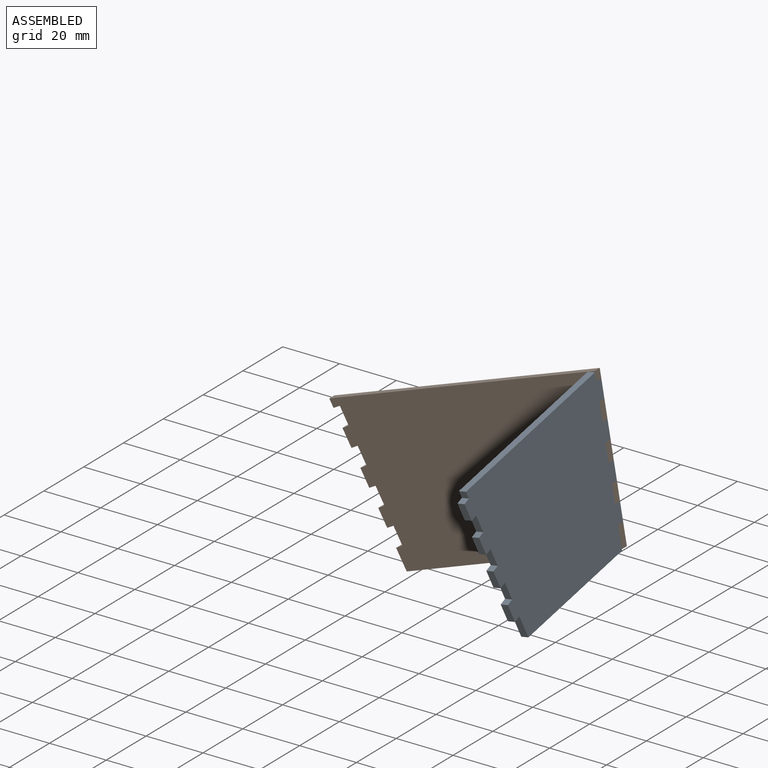
[diagram: assembled view]
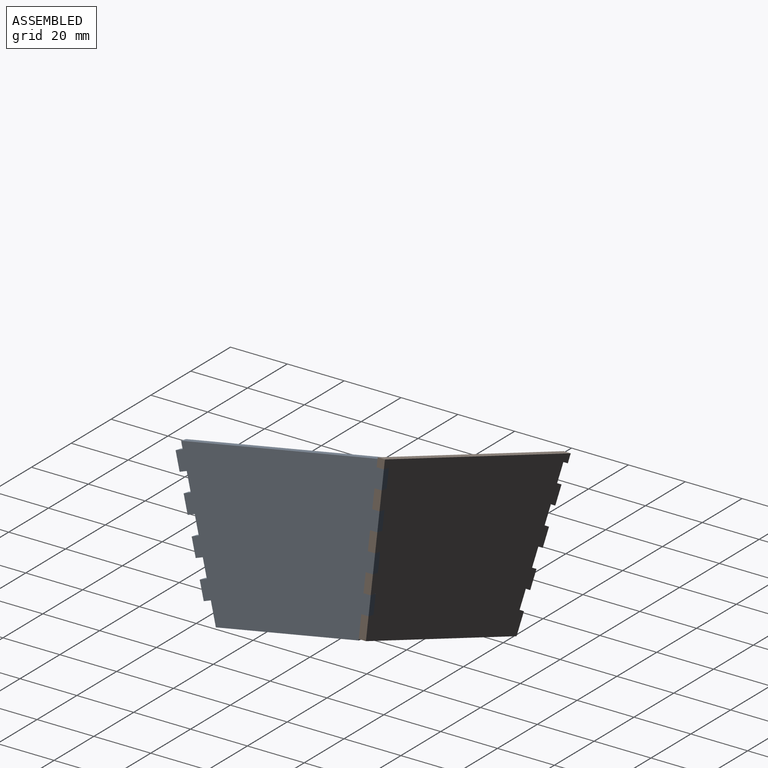
[diagram: assembled view, second angle]
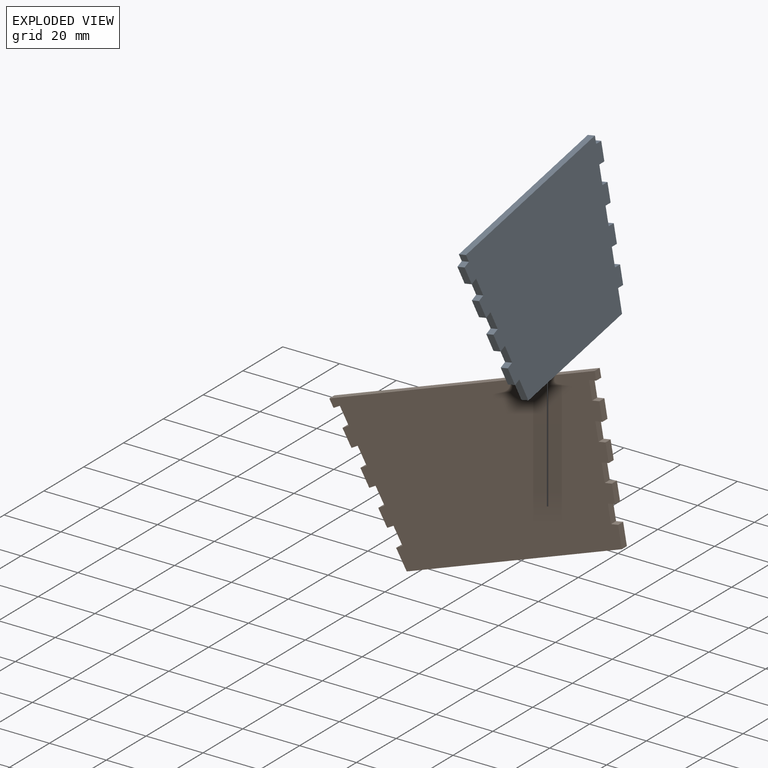
[diagram: exploded view]
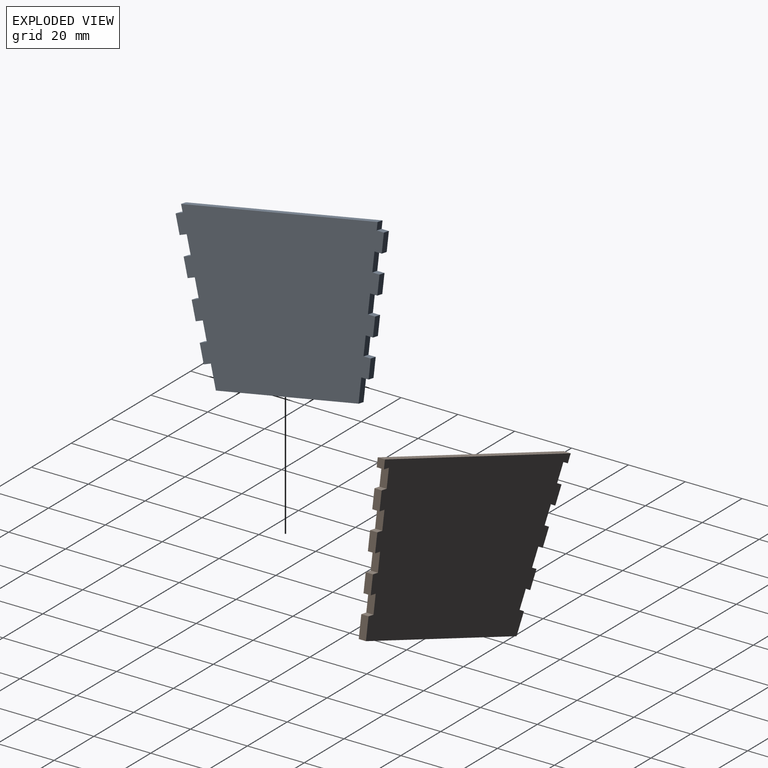
[diagram: exploded view, second angle]
ASSEMBLY  parts=2 mates=2
PART A: 38 faces, bbox 11.9x72.8x53.8 mm
  f0: plane 2.58x2.5mm, normal (-0.17,0.17,0.97), area 6.5mm2, adj f1,f35,f36,f37
  f1: plane 6.6x3.59mm, normal (0.03,0.99,-0.17), area 16.1mm2, adj f0,f2,f36,f37
  f2: plane 2.58x2.5mm, normal (0.17,-0.17,-0.97), area 6.5mm2, adj f1,f3,f36,f37
  f3: plane 6.6x3.59mm, normal (0.03,0.99,-0.17), area 16.1mm2, adj f2,f4,f36,f37
  f4: plane 2.58x2.5mm, normal (-0.17,0.17,0.97), area 6.5mm2, adj f3,f5,f36,f37
  f5: plane 6.6x3.59mm, normal (0.03,0.99,-0.17), area 16.1mm2, adj f4,f6,f36,f37
  f6: plane 2.58x2.5mm, normal (0.17,-0.17,-0.97), area 6.5mm2, adj f5,f7,f36,f37
  f7: plane 6.6x3.59mm, normal (0.03,0.99,-0.17), area 16.1mm2, adj f6,f8,f36,f37
  f8: plane 2.58x2.5mm, normal (-0.17,0.17,0.97), area 6.5mm2, adj f7,f9,f36,f37
  f9: plane 6.6x3.59mm, normal (0.03,0.99,-0.17), area 16.1mm2, adj f8,f10,f36,f37
  f10: plane 2.58x2.5mm, normal (0.17,-0.17,-0.97), area 6.5mm2, adj f9,f11,f36,f37
  f11: plane 6.6x3.59mm, normal (0.03,0.99,-0.17), area 16.1mm2, adj f10,f12,f36,f37
  f12: plane 2.58x2.5mm, normal (-0.17,0.17,0.97), area 6.5mm2, adj f11,f13,f36,f37
  f13: plane 6.6x3.59mm, normal (0.03,0.99,-0.17), area 16.1mm2, adj f12,f14,f36,f37
  f14: plane 2.58x2.5mm, normal (0.17,-0.17,-0.97), area 6.5mm2, adj f13,f15,f36,f37
  f15: plane 8.16x3.86mm, normal (0.03,0.99,-0.17), area 20.2mm2, adj f14,f16,f36,f37
  f16: plane 49.9x2.5mm, normal (0.17,0,-0.98), area 126.8mm2, adj f15,f17,f36,f37
  f17: plane 8.16x3.86mm, normal (0.03,-0.99,-0.17), area 20.2mm2, adj f16,f18,f36,f37
  f18: plane 2.58x2.5mm, normal (0.17,0.17,-0.97), area 6.5mm2, adj f17,f19,f36,f37
  f19: plane 6.6x3.59mm, normal (0.03,-0.99,-0.17), area 16.1mm2, adj f18,f20,f36,f37
  f20: plane 2.58x2.5mm, normal (-0.17,-0.17,0.97), area 6.5mm2, adj f19,f21,f36,f37
  f21: plane 6.6x3.59mm, normal (0.03,-0.99,-0.17), area 16.1mm2, adj f20,f22,f36,f37
  f22: plane 2.58x2.5mm, normal (0.17,0.17,-0.97), area 6.5mm2, adj f21,f23,f36,f37
  f23: plane 6.6x3.59mm, normal (0.03,-0.99,-0.17), area 16.1mm2, adj f22,f24,f36,f37
  f24: plane 2.58x2.5mm, normal (-0.17,-0.17,0.97), area 6.5mm2, adj f23,f25,f36,f37
  f25: plane 6.6x3.59mm, normal (0.03,-0.99,-0.17), area 16.1mm2, adj f24,f26,f36,f37
  f26: plane 2.58x2.5mm, normal (0.17,0.17,-0.97), area 6.5mm2, adj f25,f27,f36,f37
  f27: plane 6.6x3.59mm, normal (0.03,-0.99,-0.17), area 16.1mm2, adj f26,f28,f36,f37
  f28: plane 2.58x2.5mm, normal (-0.17,-0.17,0.97), area 6.5mm2, adj f27,f29,f36,f37
  f29: plane 6.6x3.59mm, normal (0.03,-0.99,-0.17), area 16.1mm2, adj f28,f30,f36,f37
  f30: plane 2.58x2.5mm, normal (0.17,0.17,-0.97), area 6.5mm2, adj f29,f31,f36,f37
  f31: plane 6.6x3.59mm, normal (0.03,-0.99,-0.17), area 16.1mm2, adj f30,f32,f36,f37
  f32: plane 2.58x2.5mm, normal (-0.17,-0.17,0.97), area 6.5mm2, adj f31,f33,f36,f37
  f33: plane 2.94x2.93mm, normal (0.03,-0.99,-0.17), area 6.5mm2, adj f32,f34,f36,f37
  f34: plane 68.72x2.5mm, normal (-0.17,0,0.98), area 174.5mm2, adj f33,f35,f36,f37
  f35: plane 2.94x2.93mm, normal (0.03,0.99,-0.17), area 6.5mm2, adj f0,f34,f36,f37
  f36: plane 72.84x53.34mm, normal (0.98,0,0.17), area 3341.5mm2, adj f0,f1,f2,f3,f4,f5,f6,f7
  f37: plane 72.84x53.34mm, normal (-0.98,0,-0.17), area 3341.5mm2, adj f0,f1,f2,f3,f4,f5,f6,f7
PART B: 38 faces, bbox 99.3x11.9x53.8 mm
  f0: plane 2.58x2.5mm, normal (0.17,-0.17,-0.97), area 6.5mm2, adj f1,f35,f36,f37
  f1: plane 3.36x3.02mm, normal (-0.99,-0.03,-0.17), area 7.6mm2, adj f0,f2,f36,f37
  f2: plane 99.27x2.5mm, normal (0,0.17,0.98), area 252.2mm2, adj f1,f3,f36,f37
  f3: plane 3.36x3.02mm, normal (0.99,-0.03,-0.17), area 7.6mm2, adj f2,f4,f36,f37
  f4: plane 2.58x2.5mm, normal (-0.17,-0.17,-0.97), area 6.5mm2, adj f3,f5,f36,f37
  f5: plane 6.6x3.59mm, normal (0.99,-0.03,-0.17), area 16.1mm2, adj f4,f6,f36,f37
  f6: plane 2.58x2.5mm, normal (0.17,0.17,0.97), area 6.5mm2, adj f5,f7,f36,f37
  f7: plane 6.6x3.59mm, normal (0.99,-0.03,-0.17), area 16.1mm2, adj f6,f8,f36,f37
  f8: plane 2.58x2.5mm, normal (-0.17,-0.17,-0.97), area 6.5mm2, adj f7,f9,f36,f37
  f9: plane 6.6x3.59mm, normal (0.99,-0.03,-0.17), area 16.1mm2, adj f8,f10,f36,f37
  f10: plane 2.58x2.5mm, normal (0.17,0.17,0.97), area 6.5mm2, adj f9,f11,f36,f37
  f11: plane 6.6x3.59mm, normal (0.99,-0.03,-0.17), area 16.1mm2, adj f10,f12,f36,f37
  f12: plane 2.58x2.5mm, normal (-0.17,-0.17,-0.97), area 6.5mm2, adj f11,f13,f36,f37
  f13: plane 6.6x3.59mm, normal (0.99,-0.03,-0.17), area 16.1mm2, adj f12,f14,f36,f37
  f14: plane 2.58x2.5mm, normal (0.17,0.17,0.97), area 6.5mm2, adj f13,f15,f36,f37
  f15: plane 6.6x3.59mm, normal (0.99,-0.03,-0.17), area 16.1mm2, adj f14,f16,f36,f37
  f16: plane 2.58x2.5mm, normal (-0.17,-0.17,-0.97), area 6.5mm2, adj f15,f17,f36,f37
  f17: plane 6.6x3.59mm, normal (0.99,-0.03,-0.17), area 16.1mm2, adj f16,f18,f36,f37
  f18: plane 2.58x2.5mm, normal (0.17,0.17,0.97), area 6.5mm2, adj f17,f19,f36,f37
  f19: plane 7.73x3.79mm, normal (0.99,-0.03,-0.17), area 19.1mm2, adj f18,f20,f36,f37
  f20: plane 80.46x2.5mm, normal (0,-0.17,-0.98), area 204.4mm2, adj f19,f21,f36,f37
  f21: plane 7.73x3.79mm, normal (-0.99,-0.03,-0.17), area 19.1mm2, adj f20,f22,f36,f37
  f22: plane 2.58x2.5mm, normal (-0.17,0.17,0.97), area 6.5mm2, adj f21,f23,f36,f37
  f23: plane 6.6x3.59mm, normal (-0.99,-0.03,-0.17), area 16.1mm2, adj f22,f24,f36,f37
  f24: plane 2.58x2.5mm, normal (0.17,-0.17,-0.97), area 6.5mm2, adj f23,f25,f36,f37
  f25: plane 6.6x3.59mm, normal (-0.99,-0.03,-0.17), area 16.1mm2, adj f24,f26,f36,f37
  f26: plane 2.58x2.5mm, normal (-0.17,0.17,0.97), area 6.5mm2, adj f25,f27,f36,f37
  f27: plane 6.6x3.59mm, normal (-0.99,-0.03,-0.17), area 16.1mm2, adj f26,f28,f36,f37
  f28: plane 2.58x2.5mm, normal (0.17,-0.17,-0.97), area 6.5mm2, adj f27,f29,f36,f37
  f29: plane 6.6x3.59mm, normal (-0.99,-0.03,-0.17), area 16.1mm2, adj f28,f30,f36,f37
  f30: plane 2.58x2.5mm, normal (-0.17,0.17,0.97), area 6.5mm2, adj f29,f31,f36,f37
  f31: plane 6.6x3.59mm, normal (-0.99,-0.03,-0.17), area 16.1mm2, adj f30,f32,f36,f37
  f32: plane 2.58x2.5mm, normal (0.17,-0.17,-0.97), area 6.5mm2, adj f31,f33,f36,f37
  f33: plane 6.6x3.59mm, normal (-0.99,-0.03,-0.17), area 16.1mm2, adj f32,f34,f36,f37
  f34: plane 2.58x2.5mm, normal (-0.17,0.17,0.97), area 6.5mm2, adj f33,f35,f36,f37
  f35: plane 6.6x3.59mm, normal (-0.99,-0.03,-0.17), area 16.1mm2, adj f0,f34,f36,f37
  f36: plane 99.27x53.34mm, normal (0,-0.98,0.17), area 4738.4mm2, adj f0,f1,f2,f3,f4,f5,f6,f7
  f37: plane 99.27x53.34mm, normal (0,0.98,-0.17), area 4738.4mm2, adj f0,f1,f2,f3,f4,f5,f6,f7
PLACE A rot(axis=(0.98,0,0.17),9.9deg) t=(-1.64,-18.76,21.58)mm
PLACE B rot(axis=(-0.17,0.09,0.98),178.3deg) t=(-77.24,32.61,8.25)mm
MATE revolute B.f29 <-> A.f36  axis (0.98,0,0.17) through (-45.34,5.06,53.34)mm
MATE revolute B.f33 <-> A.f36  axis (0.98,0,0.17) through (-47.55,5.06,65.85)mm
